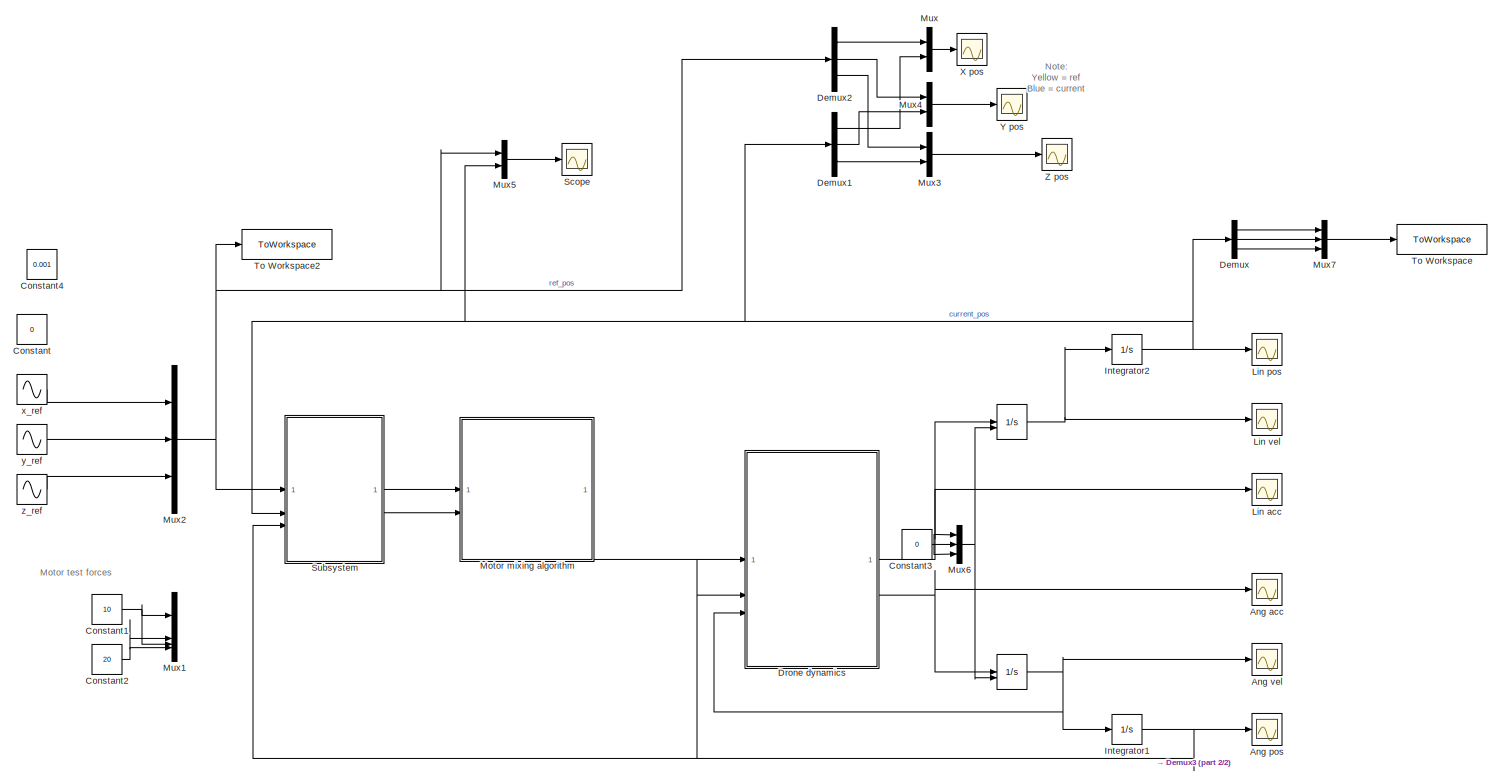
[diagram: root canvas - part 1/2, most of the canvas]
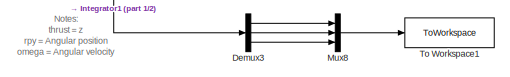
[diagram: root canvas - part 2/2, bottom right region]
MODEL slx_391e64e47cb6
KIND model
CONFIG AbsTol = auto
CONFIG EnableMultiTasking = off
CONFIG FixedStep = auto
CONFIG MaxStep = auto
CONFIG MinStep = auto
CONFIG RelTol = 1e-3
CONFIG SampleTimeConstraint = Unconstrained
CONFIG SolverName = VariableStepAuto
CONFIG StartTime = 0.0
CONFIG StopTime = 50
BLOCK [Integrator]  
  InitialCondition = [0;0;0]
  InitialConditionSource = external
BLOCK [Integrator]   
  InitialCondition = [0;0;0]
  InitialConditionSource = external
BLOCK [Scope] Ang acc
  Floating = off
  NumInputPorts = 1
  ScopeSpecificationString = Simulink.scopes.TimeScopeBlockCfg('CurrentConfiguration', extmgr.ConfigurationSet(extmgr.Configuration('Core','General UI',true),extmgr.Configuration('Core','Source UI',true),extmgr.Configuration('Sources','WiredSimulink',true,'DataLoggingVariableName','ScopeData1'),extmgr.Configuration('Visuals','Time Domain',true),extmgr.Configuration('Tools','Plot Navigation',true),extmgr.Configuration('Tools',...<+40ch>
BLOCK [Scope] Ang pos
  Floating = off
  NumInputPorts = 1
  ScopeSpecificationString = Simulink.scopes.TimeScopeBlockCfg('CurrentConfiguration', extmgr.ConfigurationSet(extmgr.Configuration('Core','General UI',true),extmgr.Configuration('Core','Source UI',true),extmgr.Configuration('Sources','WiredSimulink',true,'DataLoggingVariableName','ScopeData3'),extmgr.Configuration('Visuals','Time Domain',true,'SerializedDisplays',{struct('MinYLimReal','-0.00641','MaxYLimReal','0.0013','YLabe...<+1402ch>
BLOCK [Scope] Ang vel
  Floating = off
  NumInputPorts = 1
  ScopeSpecificationString = Simulink.scopes.TimeScopeBlockCfg('CurrentConfiguration', extmgr.ConfigurationSet(extmgr.Configuration('Core','General UI',true),extmgr.Configuration('Core','Source UI',true),extmgr.Configuration('Sources','WiredSimulink',true,'DataLoggingVariableName','ScopeData2'),extmgr.Configuration('Visuals','Time Domain',true,'SerializedDisplays',{struct('MinYLimReal','-0.000000000000003','MaxYLimReal','0.00...<+1508ch>
BLOCK [Constant] Constant
  Value = 0
BLOCK [Constant] Constant1
  Commented = on
  Value = 10
BLOCK [Constant] Constant2
  Commented = on
  Value = 20
BLOCK [Constant] Constant3
  Value = 0
BLOCK [Constant] Constant4
  Value = 0.001
BLOCK [Demux] Demux
  Outputs = 3
BLOCK [Demux] Demux1
  Outputs = 3
BLOCK [Demux] Demux2
  Outputs = 3
BLOCK [Demux] Demux3
  Outputs = 3
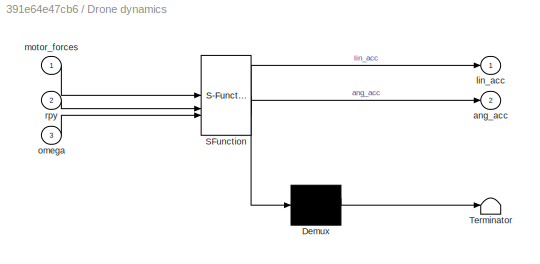
BLOCK [SubSystem] Drone dynamics
  ErrorFcn = Stateflow.Translate.translate
  LibrarySourceBlock = simulink/User-Defined\nFunctions/MATLAB Function
  PermitHierarchicalResolution = ExplicitOnly
  SFBlockType = MATLAB Function
  TreatAsAtomicUnit = on
BLOCK [Demux] Drone dynamics/ Demux 
  Outputs = 1
BLOCK [S-Function] Drone dynamics/ SFunction 
  EnableBusSupport = on
  FunctionName = sf_sfun
  PortCounts = [3 3]
  SFcnIsStateOwnerBlock = off
  SFunctionDeploymentMode = off
  Tag = Stateflow S-Function 2
BLOCK [Terminator] Drone dynamics/ Terminator 
BLOCK [Outport] Drone dynamics/ang_acc
  Port = 2
BLOCK [Outport] Drone dynamics/lin_acc
BLOCK [Inport] Drone dynamics/motor_forces
BLOCK [Inport] Drone dynamics/omega
  Port = 3
BLOCK [Inport] Drone dynamics/rpy
  Port = 2
BLOCK [Integrator] Integrator1
BLOCK [Integrator] Integrator2
BLOCK [Scope] Lin acc
  Floating = off
  NumInputPorts = 1
  ScopeSpecificationString = Simulink.scopes.TimeScopeBlockCfg('CurrentConfiguration', extmgr.ConfigurationSet(extmgr.Configuration('Core','General UI',true),extmgr.Configuration('Core','Source UI',true),extmgr.Configuration('Sources','WiredSimulink',true,'DataLoggingVariableName','ScopeData4'),extmgr.Configuration('Visuals','Time Domain',true),extmgr.Configuration('Tools','Plot Navigation',true),extmgr.Configuration('Tools',...<+40ch>
BLOCK [Scope] Lin pos
  Floating = off
  NumInputPorts = 1
  ScopeSpecificationString = Simulink.scopes.TimeScopeBlockCfg('CurrentConfiguration', extmgr.ConfigurationSet(extmgr.Configuration('Core','General UI',true),extmgr.Configuration('Core','Source UI',true),extmgr.Configuration('Sources','WiredSimulink',true,'DataLoggingVariableName','ScopeData5'),extmgr.Configuration('Visuals','Time Domain',true,'SerializedDisplays',{struct('MinYLimReal','-6.29327','MaxYLimReal','6.21821','YLab...<+1402ch>
BLOCK [Scope] Lin vel
  Floating = off
  NumInputPorts = 1
  ScopeSpecificationString = Simulink.scopes.TimeScopeBlockCfg('CurrentConfiguration', extmgr.ConfigurationSet(extmgr.Configuration('Core','General UI',true),extmgr.Configuration('Core','Source UI',true),extmgr.Configuration('Sources','WiredSimulink',true,'DataLoggingVariableName','ScopeData6'),extmgr.Configuration('Visuals','Time Domain',true,'SerializedDisplays',{struct('MinYLimReal','-3.20269','MaxYLimReal','3.80196','YLab...<+1374ch>
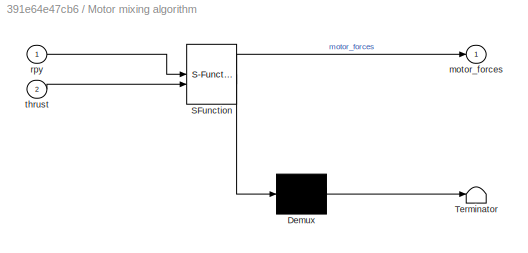
BLOCK [SubSystem] Motor mixing algorithm
  ErrorFcn = Stateflow.Translate.translate
  LibrarySourceBlock = simulink/User-Defined\nFunctions/MATLAB Function
  PermitHierarchicalResolution = ExplicitOnly
  SFBlockType = MATLAB Function
  TreatAsAtomicUnit = on
BLOCK [Demux] Motor mixing algorithm/ Demux 
  Outputs = 1
BLOCK [S-Function] Motor mixing algorithm/ SFunction 
  EnableBusSupport = on
  FunctionName = sf_sfun
  PortCounts = [2 2]
  SFcnIsStateOwnerBlock = off
  SFunctionDeploymentMode = off
  Tag = Stateflow S-Function 1
BLOCK [Terminator] Motor mixing algorithm/ Terminator 
BLOCK [Outport] Motor mixing algorithm/motor_forces
BLOCK [Inport] Motor mixing algorithm/rpy
BLOCK [Inport] Motor mixing algorithm/thrust
  Port = 2
BLOCK [Mux] Mux
  DisplayOption = bar
  Inputs = 2
BLOCK [Mux] Mux1
  Commented = on
  DisplayOption = bar
BLOCK [Mux] Mux2
  DisplayOption = bar
  Inputs = 3
BLOCK [Mux] Mux3
  DisplayOption = bar
  Inputs = 2
BLOCK [Mux] Mux4
  DisplayOption = bar
  Inputs = 2
BLOCK [Mux] Mux5
  DisplayOption = bar
  Inputs = 2
BLOCK [Mux] Mux6
  DisplayOption = bar
  Inputs = 3
BLOCK [Mux] Mux7
  DisplayOption = bar
  Inputs = 3
BLOCK [Mux] Mux8
  DisplayOption = bar
  Inputs = 3
BLOCK [Scope] Scope
  Floating = off
  NumInputPorts = 1
  ScopeSpecificationString = Simulink.scopes.TimeScopeBlockCfg('CurrentConfiguration', extmgr.ConfigurationSet(extmgr.Configuration('Core','General UI',true),extmgr.Configuration('Core','Source UI',true),extmgr.Configuration('Sources','WiredSimulink',true,'DataLoggingVariableName','ScopeData1'),extmgr.Configuration('Visuals','Time Domain',true,'SerializedDisplays',{struct('MinYLimReal','-6.2924','MaxYLimReal','6.25471','YLabe...<+1668ch>
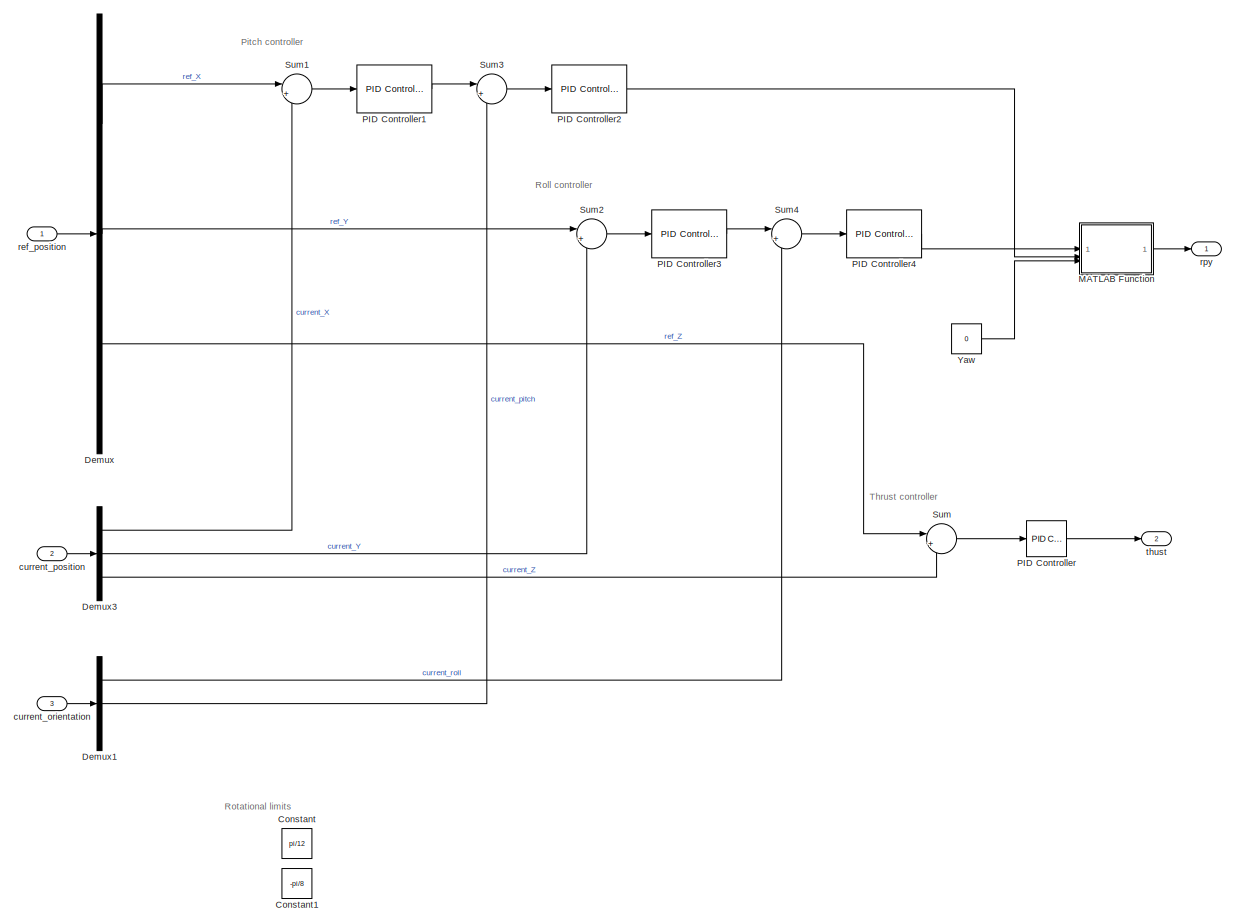
[diagram: Subsystem - part 1/1, most of the canvas]
BLOCK [SubSystem] Subsystem
BLOCK [Constant] Subsystem/Constant
  Commented = on
  Value = pi/12
BLOCK [Constant] Subsystem/Constant1
  Commented = on
  Value = -pi/8
BLOCK [Demux] Subsystem/Demux
  Outputs = 3
BLOCK [Demux] Subsystem/Demux1
  Outputs = 3
BLOCK [Demux] Subsystem/Demux3
  Outputs = 3
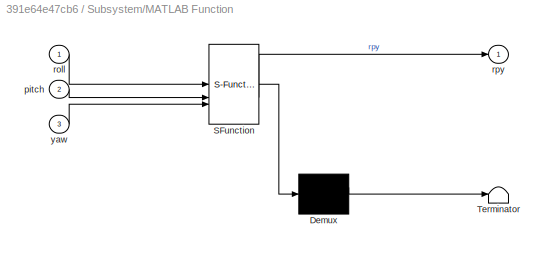
BLOCK [SubSystem] Subsystem/MATLAB Function
  ErrorFcn = Stateflow.Translate.translate
  LibrarySourceBlock = simulink/User-Defined\nFunctions/MATLAB Function
  PermitHierarchicalResolution = ExplicitOnly
  SFBlockType = MATLAB Function
  TreatAsAtomicUnit = on
BLOCK [Demux] Subsystem/MATLAB Function/ Demux 
  Outputs = 1
BLOCK [S-Function] Subsystem/MATLAB Function/ SFunction 
  EnableBusSupport = on
  FunctionName = sf_sfun
  PortCounts = [3 2]
  SFcnIsStateOwnerBlock = off
  SFunctionDeploymentMode = off
  Tag = Stateflow S-Function 3
BLOCK [Terminator] Subsystem/MATLAB Function/ Terminator 
BLOCK [Inport] Subsystem/MATLAB Function/pitch
  Port = 2
BLOCK [Inport] Subsystem/MATLAB Function/roll
BLOCK [Outport] Subsystem/MATLAB Function/rpy
BLOCK [Inport] Subsystem/MATLAB Function/yaw
  Port = 3
BLOCK [Reference] Subsystem/PID Controller  REF=slpidlib/PID Controller
  LibrarySourceBlock = simulink/Continuous/PID Controller
  SourceBlock = slpidlib/PID Controller
  SourceType = PID 1dof
BLOCK [Reference] Subsystem/PID Controller1  REF=slpidlib/PID Controller
  LibrarySourceBlock = simulink/Continuous/PID Controller
  SourceBlock = slpidlib/PID Controller
  SourceType = PID 1dof
BLOCK [Reference] Subsystem/PID Controller2  REF=slpidlib/PID Controller
  LibrarySourceBlock = simulink/Continuous/PID Controller
  SourceBlock = slpidlib/PID Controller
  SourceType = PID 1dof
BLOCK [Reference] Subsystem/PID Controller3  REF=slpidlib/PID Controller
  LibrarySourceBlock = simulink/Continuous/PID Controller
  SourceBlock = slpidlib/PID Controller
  SourceType = PID 1dof
BLOCK [Reference] Subsystem/PID Controller4  REF=slpidlib/PID Controller
  LibrarySourceBlock = simulink/Continuous/PID Controller
  SourceBlock = slpidlib/PID Controller
  SourceType = PID 1dof
BLOCK [Sum] Subsystem/Sum
  Inputs = |+-
BLOCK [Sum] Subsystem/Sum1
  Inputs = |+-
BLOCK [Sum] Subsystem/Sum2
  Inputs = |+-
BLOCK [Sum] Subsystem/Sum3
  Inputs = |+-
BLOCK [Sum] Subsystem/Sum4
  Inputs = |+-
BLOCK [Constant] Subsystem/Yaw
  Value = 0
BLOCK [Inport] Subsystem/current_orientation
  Port = 3
BLOCK [Inport] Subsystem/current_position
  Port = 2
BLOCK [Inport] Subsystem/ref_position
BLOCK [Outport] Subsystem/rpy
BLOCK [Outport] Subsystem/thust
  Port = 2
BLOCK [ToWorkspace] To Workspace
  FixptAsFi = on
  MaxDataPoints = inf
  SampleTime = -1
  VariableName = XYZ
BLOCK [ToWorkspace] To Workspace1
  FixptAsFi = on
  MaxDataPoints = inf
  SampleTime = -1
  VariableName = RPY
BLOCK [ToWorkspace] To Workspace2
  FixptAsFi = on
  MaxDataPoints = inf
  SampleTime = -1
  VariableName = refXYZ
BLOCK [Scope] X pos
  Floating = off
  NumInputPorts = 1
  ScopeSpecificationString = Simulink.scopes.TimeScopeBlockCfg('CurrentConfiguration', extmgr.ConfigurationSet(extmgr.Configuration('Core','General UI',true),extmgr.Configuration('Core','Source UI',true),extmgr.Configuration('Sources','WiredSimulink',true,'DataLoggingVariableName','ScopeData4'),extmgr.Configuration('Visuals','Time Domain',true,'SerializedDisplays',{struct('MinYLimReal','-1.28269','MaxYLimReal','1.25363','YLab...<+1378ch>
BLOCK [Scope] Y pos
  Floating = off
  NumInputPorts = 1
  ScopeSpecificationString = Simulink.scopes.TimeScopeBlockCfg('CurrentConfiguration', extmgr.ConfigurationSet(extmgr.Configuration('Core','General UI',true),extmgr.Configuration('Core','Source UI',true),extmgr.Configuration('Sources','WiredSimulink',true,'DataLoggingVariableName','ScopeData5'),extmgr.Configuration('Visuals','Time Domain',true,'SerializedDisplays',{struct('MinYLimReal','-2.86139','MaxYLimReal','2.54015','YLab...<+1378ch>
BLOCK [Scope] Z pos
  Floating = off
  NumInputPorts = 1
  ScopeSpecificationString = Simulink.scopes.TimeScopeBlockCfg('CurrentConfiguration', extmgr.ConfigurationSet(extmgr.Configuration('Core','General UI',true),extmgr.Configuration('Core','Source UI',true),extmgr.Configuration('Sources','WiredSimulink',true,'DataLoggingVariableName','ScopeData6'),extmgr.Configuration('Visuals','Time Domain',true,'SerializedDisplays',{struct('MinYLimReal','-6.24844','MaxYLimReal','6.24578','YLab...<+1397ch>
BLOCK [Sin] x_ref
  Amplitude = 3
  Frequency = 0.5
  SampleTime = 0
BLOCK [Sin] y_ref
  Amplitude = 2
  Frequency = 0.5
  SampleTime = 0
BLOCK [Sin] z_ref
  Amplitude = 5
  Frequency = 0.5
  SampleTime = 0
ANNOTATION (root): Motor test forces
ANNOTATION (root): Note: Yellow = ref Blue = current
ANNOTATION (root): Notes: thrust = z rpy = Angular position omega = Angular velocity
ANNOTATION Subsystem: Pitch controller
ANNOTATION Subsystem: Roll controller
ANNOTATION Subsystem: Rotational limits
ANNOTATION Subsystem: Thrust controller
NET   :1 -> Ang vel:1, Drone dynamics:3, Integrator1:1
NET  :1 -> Integrator2:1, Lin vel:1
NET Constant1:1 -> Mux1:1, Mux1:3
NET Constant2:1 -> Mux1:2, Mux1:4
NET Constant3:1 -> Mux6:1, Mux6:2, Mux6:3
LINE Demux1:1 -> Mux:2
LINE Demux1:2 -> Mux4:2
LINE Demux1:3 -> Mux3:2
LINE Demux2:1 -> Mux:1
LINE Demux2:2 -> Mux4:1
LINE Demux2:3 -> Mux3:1
LINE Demux3:1 -> Mux8:1
LINE Demux3:2 -> Mux8:2
LINE Demux3:3 -> Mux8:3
LINE Demux:1 -> Mux7:1
LINE Demux:2 -> Mux7:2
LINE Demux:3 -> Mux7:3
NET Drone dynamics:1 ->  :1, Lin acc:1
NET Drone dynamics:2 ->   :1, Ang acc:1
NET Integrator1:1 -> Ang pos:1, Demux3:1, Drone dynamics:2, Subsystem:3
NET Integrator2:1 -> Demux1:1, Demux:1, Lin pos:1, Mux5:2, Subsystem:2
LINE Motor mixing algorithm:1 -> Drone dynamics:1
NET Mux2:1 -> Demux2:1, Mux5:1, Subsystem:1, To Workspace2:1
LINE Mux3:1 -> Z pos:1
LINE Mux4:1 -> Y pos:1
LINE Mux5:1 -> Scope:1
NET Mux6:1 ->   :2,  :2
LINE Mux7:1 -> To Workspace:1
LINE Mux8:1 -> To Workspace1:1
LINE Mux:1 -> X pos:1
LINE Subsystem/Demux1:1 -> Subsystem/Sum4:2
LINE Subsystem/Demux1:2 -> Subsystem/Sum3:2
LINE Subsystem/Demux3:1 -> Subsystem/Sum1:2
LINE Subsystem/Demux3:2 -> Subsystem/Sum2:2
LINE Subsystem/Demux3:3 -> Subsystem/Sum:2
LINE Subsystem/Demux:1 -> Subsystem/Sum1:1
LINE Subsystem/Demux:2 -> Subsystem/Sum2:1
LINE Subsystem/Demux:3 -> Subsystem/Sum:1
LINE Subsystem/MATLAB Function:1 -> Subsystem/rpy:1
LINE Subsystem/PID Controller1:1 -> Subsystem/Sum3:1
LINE Subsystem/PID Controller2:1 -> Subsystem/MATLAB Function:2
LINE Subsystem/PID Controller3:1 -> Subsystem/Sum4:1
LINE Subsystem/PID Controller4:1 -> Subsystem/MATLAB Function:1
LINE Subsystem/PID Controller:1 -> Subsystem/thust:1
LINE Subsystem/Sum1:1 -> Subsystem/PID Controller1:1
LINE Subsystem/Sum2:1 -> Subsystem/PID Controller3:1
LINE Subsystem/Sum3:1 -> Subsystem/PID Controller2:1
LINE Subsystem/Sum4:1 -> Subsystem/PID Controller4:1
LINE Subsystem/Sum:1 -> Subsystem/PID Controller:1
LINE Subsystem/Yaw:1 -> Subsystem/MATLAB Function:3
LINE Subsystem/current_orientation:1 -> Subsystem/Demux1:1
LINE Subsystem/current_position:1 -> Subsystem/Demux3:1
LINE Subsystem/ref_position:1 -> Subsystem/Demux:1
LINE Subsystem:1 -> Motor mixing algorithm:1
LINE Subsystem:2 -> Motor mixing algorithm:2
LINE x_ref:1 -> Mux2:1
LINE y_ref:1 -> Mux2:2
LINE z_ref:1 -> Mux2:3
note: NET lines group one-source signal fan-out (src -> all destinations, sorted); 1:1 wires keep LINE
CHART Motor mixing algorithm states=1 transitions=1
  STATE_LABEL 'eML_blk_kernel()'
  STATE_LABEL 'SCRIPT:\nfunction motor_forces = fcn(rpy, thrust)\n\n% r = rpy(1);\n% p = rpy(2);\n% y = rpy(3);\n% z = thrust;\n% \n% motor_forces = ...\n% [sum([r -p y z]); ...\n% sum([-r -p -y z]);   ...\n% sum([-r p y z]);   ...\n% sum([r p -y z])];\n\nm1 = thrust + rpy(1) + rpy(2) + rpy(3);\nm2 = thrust - rpy(1) + rpy(2) - rpy(3);\nm3 = thrust - rpy(1) - rpy(2) - rpy(3);\nm4 = thrust + rpy(1) - rpy(2) + rpy(3);\nmotor_forces ...<+19ch>'
CHART Drone dynamics states=1 transitions=1
  STATE_LABEL 'eML_blk_kernel()'
  STATE_LABEL 'SCRIPT:\nfunction [lin_acc, ang_acc] = fcn(motor_forces, rpy, omega)\n\n%% Define constants\nrotor_dist = 1.42; %m\nbody_mass = 2; %kg\ng_constant = [0;0;-9.82]; %Nm/s^2\n\n% Vectors from CoM to motors\n% We create a X-configured drone\nrotor_angle = pi/4;\ns1 = [cos(rotor_angle); sin(rotor_angle); 0] * rotor_dist;\ns2 = [cos(rotor_angle); -sin(rotor_angle); 0] * rotor_dist;\ns3 = [-cos(rotor_angle); -sin(roto...<+1034ch>'
CHART Subsystem/MATLAB Function states=1 transitions=1
  STATE_LABEL 'eML_blk_kernel()'
  STATE_LABEL 'SCRIPT:\nfunction rpy = fcn(roll,pitch,yaw)\nrpy = [roll pitch yaw];'
CHART  states=0 transitions=0
CHART  states=0 transitions=0
CHART  states=0 transitions=0
